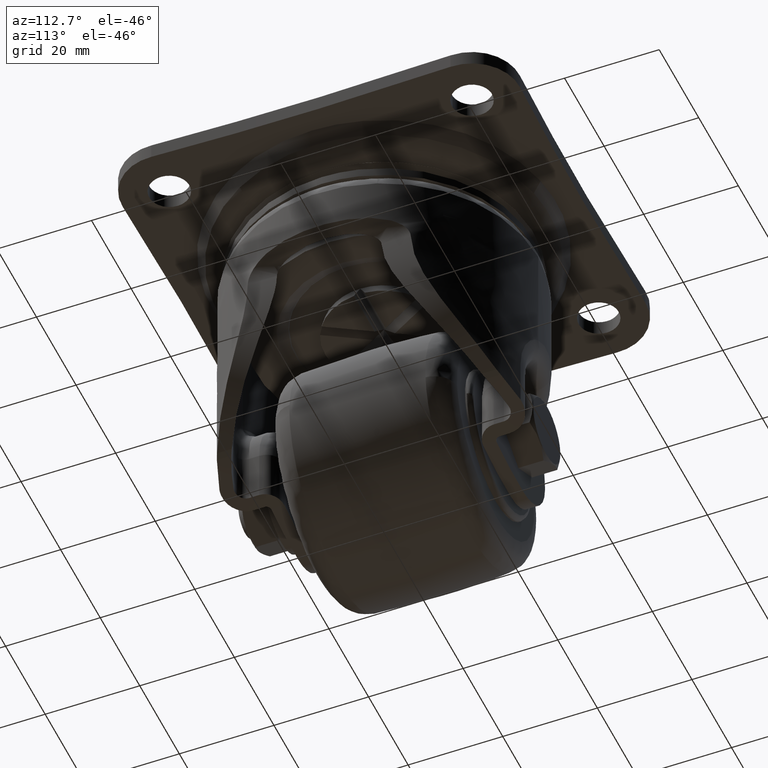
[diagram: clean part render]
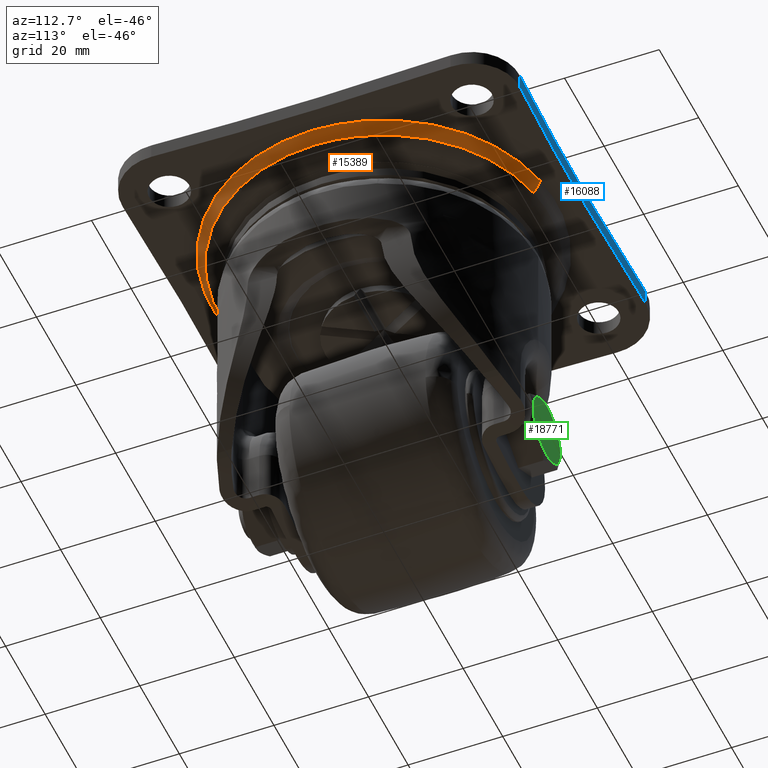
[diagram: same view with three faces highlighted in distinct colors, each labeled with its STEP entity id]
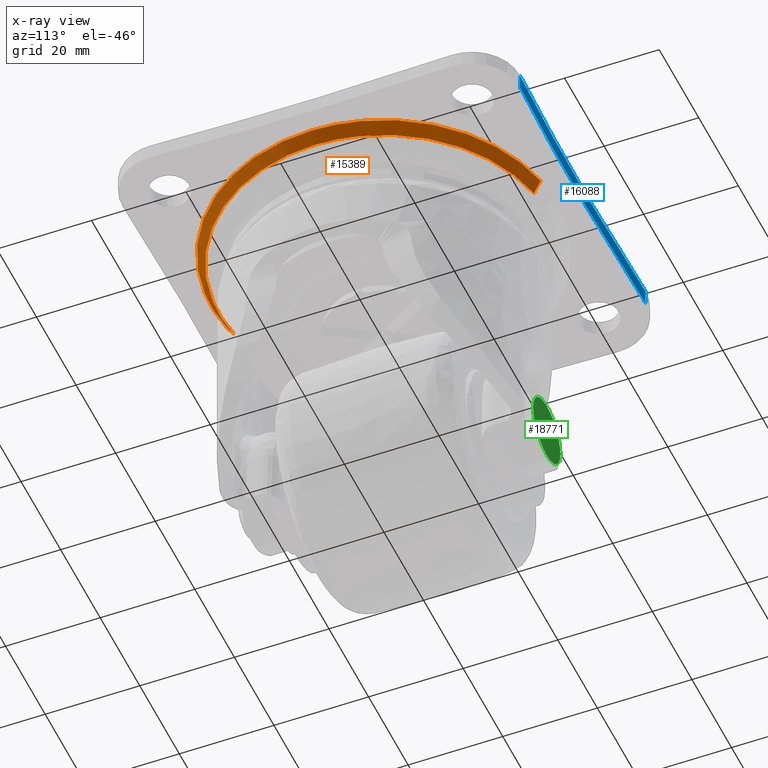
[diagram: x-ray of the same camera — body ghosted, the three highlighted faces saturated]
A machine part, auxiliary view with three faces highlighted in distinct colors.
The next image is the same camera in x-ray (body ghosted, the three faces saturated) — at least one of them is partly hidden behind the body in this view.
Their STEP definitions:

[orange] entity #15389 — the highlighted face is a freeform B-spline surface patch.
#14281=CARTESIAN_POINT('',(29.952946217518772,-17.969097026009610,-5.734060164178176));
#14282=VERTEX_POINT('',#14281);
#14283=CARTESIAN_POINT('',(-6.365389582104408,-34.344568811245097,-5.734059874832566));
#14284=VERTEX_POINT('',#14283);
#14285=CARTESIAN_POINT('',(29.952946217518765,-17.969097026009607,-5.734060164178176));
#14286=CARTESIAN_POINT('',(19.778238596662518,-34.929465163905391,-5.734060082363257));
#14287=CARTESIAN_POINT('',(0.000000959659133,-34.929465983073257,-5.734059925334705));
#14288=CARTESIAN_POINT('',(-3.209566580511707,-34.929466116005969,-5.734059899852469));
#14289=CARTESIAN_POINT('',(-6.365389582104408,-34.344568811245097,-5.734059874832566));
#14297=(BOUNDED_CURVE()B_SPLINE_CURVE(2,(#14285,#14286,#14287,#14288,#14289),.UNSPECIFIED.,.F.,.U.)B_SPLINE_CURVE_WITH_KNOTS((3,2,3),(0.587839549157033,0.750000000000000,0.781295853095117),.UNSPECIFIED.)CURVE()GEOMETRIC_REPRESENTATION_ITEM()RATIONAL_B_SPLINE_CURVE((0.866495982089679,0.810017214353451,1.0,0.963334627405833,0.935849047726744))REPRESENTATION_ITEM(''));
#14298=EDGE_CURVE('',#14282,#14284,#14297,.T.);
#14390=CARTESIAN_POINT('',(34.929466000000097,0.0,-5.734061999999910));
#14391=VERTEX_POINT('',#14390);
#14392=CARTESIAN_POINT('',(34.929466000000097,0.0,-5.734061999999910));
#14393=CARTESIAN_POINT('',(34.929464884971516,-9.673668524706518,-5.734061194172335));
#14394=CARTESIAN_POINT('',(29.952946217518765,-17.969097026009607,-5.734060164178176));
#14402=(BOUNDED_CURVE()B_SPLINE_CURVE(2,(#14392,#14393,#14394),.UNSPECIFIED.,.F.,.U.)B_SPLINE_CURVE_WITH_KNOTS((3,3),(0.500000000000000,0.587839549157033),.UNSPECIFIED.)CURVE()GEOMETRIC_REPRESENTATION_ITEM()RATIONAL_B_SPLINE_CURVE((1.0,0.897089566833097,0.866495982089679))REPRESENTATION_ITEM(''));
#14403=EDGE_CURVE('',#14391,#14282,#14402,.T.);
#14409=CARTESIAN_POINT('',(6.365389684689018,34.344569364741723,-5.734060702042436));
#14410=VERTEX_POINT('',#14409);
#14426=CARTESIAN_POINT('',(6.365389684689018,34.344569364741716,-5.734060702042436));
#14427=CARTESIAN_POINT('',(34.929466061203819,29.050532211180339,-5.734062035647177));
#14428=CARTESIAN_POINT('',(34.929466000000097,0.0,-5.734061999999910));
#14436=(BOUNDED_CURVE()B_SPLINE_CURVE(2,(#14426,#14427,#14428),.UNSPECIFIED.,.F.,.U.)B_SPLINE_CURVE_WITH_KNOTS((3,3),(0.281295834715292,0.500000000000000),.UNSPECIFIED.)CURVE()GEOMETRIC_REPRESENTATION_ITEM()RATIONAL_B_SPLINE_CURVE((0.935849080010907,0.743772132247410,1.0))REPRESENTATION_ITEM(''));
#14437=EDGE_CURVE('',#14410,#14391,#14436,.T.);
#15322=CARTESIAN_POINT('',(-6.358234396226729,-34.305962883187973,-5.797413724999908));
#15323=CARTESIAN_POINT('',(27.947728486961250,-40.664197279414694,-5.797413724999908));
#15324=CARTESIAN_POINT('',(34.305962883187973,-6.358234396226729,-5.797413724999908));
#15325=CARTESIAN_POINT('',(40.664197279414694,27.947728486961250,-5.797413724999908));
#15326=CARTESIAN_POINT('',(6.358234396226729,34.305962883187973,-5.797413724999908));
#15327=CARTESIAN_POINT('',(-6.658931484734972,-35.928379188501957,-3.135057481875002));
#15328=CARTESIAN_POINT('',(29.269447703766989,-42.587310673236935,-3.135057481875002));
#15329=CARTESIAN_POINT('',(35.928379188501957,-6.658931484734972,-3.135057481875002));
#15330=CARTESIAN_POINT('',(42.587310673236935,29.269447703766989,-3.135057481875002));
#15331=CARTESIAN_POINT('',(6.658931484734972,35.928379188501957,-3.135057481875002));
#15339=(BOUNDED_SURFACE()B_SPLINE_SURFACE(2,1,((#15322,#15327),(#15323,#15328),(#15324,#15329),(#15325,#15330),(#15326,#15331)),.UNSPECIFIED.,.F.,.F.,.U.)B_SPLINE_SURFACE_WITH_KNOTS((3,2,3),(2,2),(0.0,60.541866893220799,121.083733786441600),(0.0,3.132218729924873),.UNSPECIFIED.)GEOMETRIC_REPRESENTATION_ITEM()RATIONAL_B_SPLINE_SURFACE(((1.0,1.0),(0.707106781186548,0.707106781186548),(1.0,1.0),(0.707106781186548,0.707106781186548),(1.0,1.0)))REPRESENTATION_ITEM('')SURFACE());
#15340=ORIENTED_EDGE('',*,*,#14298,.F.);
#15341=ORIENTED_EDGE('',*,*,#14403,.F.);
#15342=ORIENTED_EDGE('',*,*,#14437,.F.);
#15343=CARTESIAN_POINT('',(6.651597409466108,35.888808059099112,-3.199992999990037));
#15344=VERTEX_POINT('',#15343);
#15345=CARTESIAN_POINT('',(6.365389684689018,34.344569364741723,-5.734060702042436));
#15346=CARTESIAN_POINT('',(6.651597409466108,35.888808059099112,-3.199992999990037));
#15347=QUASI_UNIFORM_CURVE('',1,(#15345,#15346),.UNSPECIFIED.,.F.,.U.);
#15348=EDGE_CURVE('',#14410,#15344,#15347,.T.);
#15349=ORIENTED_EDGE('',*,*,#15348,.T.);
#15350=CARTESIAN_POINT('',(36.500004000000096,0.0,-3.199993000000000));
#15351=VERTEX_POINT('',#15350);
#15352=CARTESIAN_POINT('',(6.651597409466108,35.888808059099105,-3.199992999990037));
#15353=CARTESIAN_POINT('',(36.500004000000672,30.356732888827008,-3.199992999995019));
#15354=CARTESIAN_POINT('',(36.500004000000096,0.0,-3.199993000000000));
#15362=(BOUNDED_CURVE()B_SPLINE_CURVE(2,(#15352,#15353,#15354),.UNSPECIFIED.,.F.,.U.)B_SPLINE_CURVE_WITH_KNOTS((3,3),(0.281295845407931,0.500000000000000),.UNSPECIFIED.)CURVE()GEOMETRIC_REPRESENTATION_ITEM()RATIONAL_B_SPLINE_CURVE((0.935849061229286,0.743772144774615,1.0))REPRESENTATION_ITEM(''));
#15363=EDGE_CURVE('',#15344,#15351,#15362,.T.);
#15364=ORIENTED_EDGE('',*,*,#15363,.T.);
#15365=CARTESIAN_POINT('',(-6.651597409466108,-35.888808059099112,-3.199992999990040));
#15366=VERTEX_POINT('',#15365);
#15367=CARTESIAN_POINT('',(36.500004000000096,0.0,-3.199993000000000));
#15368=CARTESIAN_POINT('',(36.500003999999635,-36.500004000002619,-3.199992999995859));
#15369=CARTESIAN_POINT('',(-1.032248E-012,-36.500004000005653,-3.199992999990878));
#15370=CARTESIAN_POINT('',(-3.353879213458418,-36.500004000005923,-3.199992999990421));
#15371=CARTESIAN_POINT('',(-6.651597409466108,-35.888808059099105,-3.199992999990040));
#15379=(BOUNDED_CURVE()B_SPLINE_CURVE(2,(#15367,#15368,#15369,#15370,#15371),.UNSPECIFIED.,.F.,.U.)B_SPLINE_CURVE_WITH_KNOTS((3,2,3),(0.500000000000000,0.750000000000000,0.781295845407931),.UNSPECIFIED.)CURVE()GEOMETRIC_REPRESENTATION_ITEM()RATIONAL_B_SPLINE_CURVE((1.0,0.707106781186547,1.0,0.963334636411932,0.935849061229286))REPRESENTATION_ITEM(''));
#15380=EDGE_CURVE('',#15351,#15366,#15379,.T.);
#15381=ORIENTED_EDGE('',*,*,#15380,.T.);
#15382=CARTESIAN_POINT('',(-6.365389582104408,-34.344568811245097,-5.734059874832566));
#15383=CARTESIAN_POINT('',(-6.651597409466108,-35.888808059099112,-3.199992999990040));
#15384=QUASI_UNIFORM_CURVE('',1,(#15382,#15383),.UNSPECIFIED.,.F.,.U.);
#15385=EDGE_CURVE('',#14284,#15366,#15384,.T.);
#15386=ORIENTED_EDGE('',*,*,#15385,.F.);
#15387=EDGE_LOOP('',(#15340,#15341,#15342,#15349,#15364,#15381,#15386));
#15388=FACE_OUTER_BOUND('',#15387,.T.);
#15389=ADVANCED_FACE('',(#15388),#15339,.T.);

[blue] entity #16088 — the highlighted face is a freeform B-spline surface patch.
#15641=CARTESIAN_POINT('',(31.625108336016851,41.992987745338048,-3.199992999999955));
#15642=VERTEX_POINT('',#15641);
#15738=CARTESIAN_POINT('',(-31.625078908228200,41.992986641414049,-3.199992999999955));
#15739=VERTEX_POINT('',#15738);
#15756=CARTESIAN_POINT('',(-31.625078908228112,41.992986641414042,-3.199992999999955));
#15757=CARTESIAN_POINT('',(0.000014734599592,40.806635734596426,-3.199992999999955));
#15758=CARTESIAN_POINT('',(31.625108336016961,41.992987745338112,-3.199992999999955));
#15766=(BOUNDED_CURVE()B_SPLINE_CURVE(2,(#15756,#15757,#15758),.UNSPECIFIED.,.F.,.U.)CURVE()GEOMETRIC_REPRESENTATION_ITEM()QUASI_UNIFORM_CURVE()RATIONAL_B_SPLINE_CURVE((1.0,0.999297129954580,1.0))REPRESENTATION_ITEM(''));
#15767=EDGE_CURVE('',#15739,#15642,#15766,.T.);
#16024=CARTESIAN_POINT('',(-31.625078908228200,41.992986641414049,0.0));
#16025=VERTEX_POINT('',#16024);
#16042=CARTESIAN_POINT('',(-31.625078908228200,41.992986641414049,0.0));
#16043=CARTESIAN_POINT('',(-31.625078908228200,41.992986641414049,-3.199992999999955));
#16044=QUASI_UNIFORM_CURVE('',1,(#16042,#16043),.UNSPECIFIED.,.F.,.U.);
#16045=EDGE_CURVE('',#16025,#15739,#16044,.T.);
#16050=CARTESIAN_POINT('',(-34.780395544210101,42.117265877926059,0.079999824999999));
#16051=CARTESIAN_POINT('',(-34.780395544210101,42.117265877926059,-3.281992820624954));
#16052=CARTESIAN_POINT('',(0.001482606681678,40.682102637891965,0.079999824999999));
#16053=CARTESIAN_POINT('',(0.001482606681678,40.682102637891965,-3.281992820624953));
#16054=CARTESIAN_POINT('',(34.783355717339646,42.117388025233318,0.079999824999999));
#16055=CARTESIAN_POINT('',(34.783355717339646,42.117388025233318,-3.281992820624955));
#16063=(BOUNDED_SURFACE()B_SPLINE_SURFACE(1,2,((#16050,#16052,#16054),(#16051,#16053,#16055)),.UNSPECIFIED.,.F.,.F.,.U.)B_SPLINE_SURFACE_WITH_KNOTS((2,2),(3,3),(0.0,3.361992645624953),(4.209126337909698,73.812150136089329),.UNSPECIFIED.)GEOMETRIC_REPRESENTATION_ITEM()RATIONAL_B_SPLINE_SURFACE(((0.999832198934911,0.998496192868431,0.998859821853954),(0.999832198934911,0.998496192868431,0.998859821853954)))REPRESENTATION_ITEM('')SURFACE());
#16064=ORIENTED_EDGE('',*,*,#15767,.F.);
#16065=ORIENTED_EDGE('',*,*,#16045,.F.);
#16066=CARTESIAN_POINT('',(31.625108336016851,41.992987745338048,0.0));
#16067=VERTEX_POINT('',#16066);
#16068=CARTESIAN_POINT('',(-31.625078908228112,41.992986641414042,0.0));
#16069=CARTESIAN_POINT('',(0.000014734599592,40.806635734596426,0.0));
#16070=CARTESIAN_POINT('',(31.625108336016961,41.992987745338112,0.0));
#16078=(BOUNDED_CURVE()B_SPLINE_CURVE(2,(#16068,#16069,#16070),.UNSPECIFIED.,.F.,.U.)CURVE()GEOMETRIC_REPRESENTATION_ITEM()QUASI_UNIFORM_CURVE()RATIONAL_B_SPLINE_CURVE((1.0,0.999297129954580,1.0))REPRESENTATION_ITEM(''));
#16079=EDGE_CURVE('',#16025,#16067,#16078,.T.);
#16080=ORIENTED_EDGE('',*,*,#16079,.T.);
#16081=CARTESIAN_POINT('',(31.625108336016851,41.992987745338048,0.0));
#16082=CARTESIAN_POINT('',(31.625108336016851,41.992987745338048,-3.199992999999955));
#16083=QUASI_UNIFORM_CURVE('',1,(#16081,#16082),.UNSPECIFIED.,.F.,.U.);
#16084=EDGE_CURVE('',#16067,#15642,#16083,.T.);
#16085=ORIENTED_EDGE('',*,*,#16084,.T.);
#16086=EDGE_LOOP('',(#16064,#16065,#16080,#16085));
#16087=FACE_OUTER_BOUND('',#16086,.T.);
#16088=ADVANCED_FACE('',(#16087),#16063,.F.);

[green] entity #18771 — the highlighted face is a freeform B-spline surface patch.
#18700=CARTESIAN_POINT('',(-18.559175914694720,29.800001000000002,-46.440461255716272));
#18701=CARTESIAN_POINT('',(-18.559175914694720,29.800001000000002,-61.559479112975112));
#18702=CARTESIAN_POINT('',(-3.440734576893996,29.800001000000002,-46.440461255716272));
#18703=CARTESIAN_POINT('',(-3.440734576893996,29.800001000000002,-61.559479112975112));
#18704=B_SPLINE_SURFACE_WITH_KNOTS('',1,1,((#18700,#18702),(#18701,#18703)),.UNSPECIFIED.,.F.,.F.,.U.,(2,2),(2,2),(0.0,15.119017857258850),(0.0,15.118441337800730),.UNSPECIFIED.);
#18705=CARTESIAN_POINT('',(-10.999955000000099,29.800001000000002,-47.127064489566521));
#18706=VERTEX_POINT('',#18705);
#18707=CARTESIAN_POINT('',(-4.127311189392720,29.800000999939211,-54.059946739775562));
#18708=VERTEX_POINT('',#18707);
#18709=CARTESIAN_POINT('',(-10.999955000000099,29.800001000000002,-47.127064489566521));
#18710=CARTESIAN_POINT('',(-4.127049489514440,29.800000999969871,-47.127064489566969));
#18711=CARTESIAN_POINT('',(-4.127049489461802,29.800000999939471,-53.999970000000907));
#18712=CARTESIAN_POINT('',(-4.127049489461573,29.800000999939339,-54.029958940833360));
#18713=CARTESIAN_POINT('',(-4.127311189392720,29.800000999939204,-54.059946739775555));
#18721=(BOUNDED_CURVE()B_SPLINE_CURVE(2,(#18709,#18710,#18711,#18712,#18713),.UNSPECIFIED.,.F.,.U.)B_SPLINE_CURVE_WITH_KNOTS((3,2,3),(0.0,0.250000000000000,0.251539896535563),.UNSPECIFIED.)CURVE()GEOMETRIC_REPRESENTATION_ITEM()RATIONAL_B_SPLINE_CURVE((1.0,0.707106781186547,1.0,0.998195898988238,0.996414023007658))REPRESENTATION_ITEM(''));
#18722=EDGE_CURVE('',#18706,#18708,#18721,.T.);
#18723=ORIENTED_EDGE('',*,*,#18722,.T.);
#18724=CARTESIAN_POINT('',(-10.999955000000099,29.800001000000002,-60.872875510433481));
#18725=VERTEX_POINT('',#18724);
#18726=CARTESIAN_POINT('',(-4.127311189392720,29.800000999939204,-54.059946739775555));
#18727=CARTESIAN_POINT('',(-4.186766803216073,29.800000999969608,-60.872875510433936));
#18728=CARTESIAN_POINT('',(-10.999955000000099,29.800001000000002,-60.872875510433481));
#18736=(BOUNDED_CURVE()B_SPLINE_CURVE(2,(#18726,#18727,#18728),.UNSPECIFIED.,.F.,.U.)B_SPLINE_CURVE_WITH_KNOTS((3,3),(0.251539896535563,0.500000000000000),.UNSPECIFIED.)CURVE()GEOMETRIC_REPRESENTATION_ITEM()RATIONAL_B_SPLINE_CURVE((0.996414023007658,0.708910882198310,1.0))REPRESENTATION_ITEM(''));
#18737=EDGE_CURVE('',#18708,#18725,#18736,.T.);
#18738=ORIENTED_EDGE('',*,*,#18737,.T.);
#18739=CARTESIAN_POINT('',(-17.872598810607489,29.800000999939211,-53.939993260224462));
#18740=VERTEX_POINT('',#18739);
#18741=CARTESIAN_POINT('',(-10.999955000000099,29.800001000000002,-60.872875510433481));
#18742=CARTESIAN_POINT('',(-17.872860510485761,29.800000999969871,-60.872875510433019));
#18743=CARTESIAN_POINT('',(-17.872860510538398,29.800000999939471,-53.999969999999102));
#18744=CARTESIAN_POINT('',(-17.872860510538636,29.800000999939336,-53.969981059166656));
#18745=CARTESIAN_POINT('',(-17.872598810607489,29.800000999939211,-53.939993260224455));
#18753=(BOUNDED_CURVE()B_SPLINE_CURVE(2,(#18741,#18742,#18743,#18744,#18745),.UNSPECIFIED.,.F.,.U.)B_SPLINE_CURVE_WITH_KNOTS((3,2,3),(0.500000000000000,0.750000000000000,0.751539896535563),.UNSPECIFIED.)CURVE()GEOMETRIC_REPRESENTATION_ITEM()RATIONAL_B_SPLINE_CURVE((1.0,0.707106781186547,1.0,0.998195898988237,0.996414023007657))REPRESENTATION_ITEM(''));
#18754=EDGE_CURVE('',#18725,#18740,#18753,.T.);
#18755=ORIENTED_EDGE('',*,*,#18754,.T.);
#18756=CARTESIAN_POINT('',(-17.872598810607485,29.800000999939204,-53.939993260224455));
#18757=CARTESIAN_POINT('',(-17.813143196784129,29.800000999969598,-47.127064489566074));
#18758=CARTESIAN_POINT('',(-10.999955000000099,29.800001000000002,-47.127064489566521));
#18766=(BOUNDED_CURVE()B_SPLINE_CURVE(2,(#18756,#18757,#18758),.UNSPECIFIED.,.F.,.U.)B_SPLINE_CURVE_WITH_KNOTS((3,3),(0.751539896535563,1.0),.UNSPECIFIED.)CURVE()GEOMETRIC_REPRESENTATION_ITEM()RATIONAL_B_SPLINE_CURVE((0.996414023007657,0.708910882198310,1.0))REPRESENTATION_ITEM(''));
#18767=EDGE_CURVE('',#18740,#18706,#18766,.T.);
#18768=ORIENTED_EDGE('',*,*,#18767,.T.);
#18769=EDGE_LOOP('',(#18723,#18738,#18755,#18768));
#18770=FACE_OUTER_BOUND('',#18769,.T.);
#18771=ADVANCED_FACE('',(#18770),#18704,.F.);